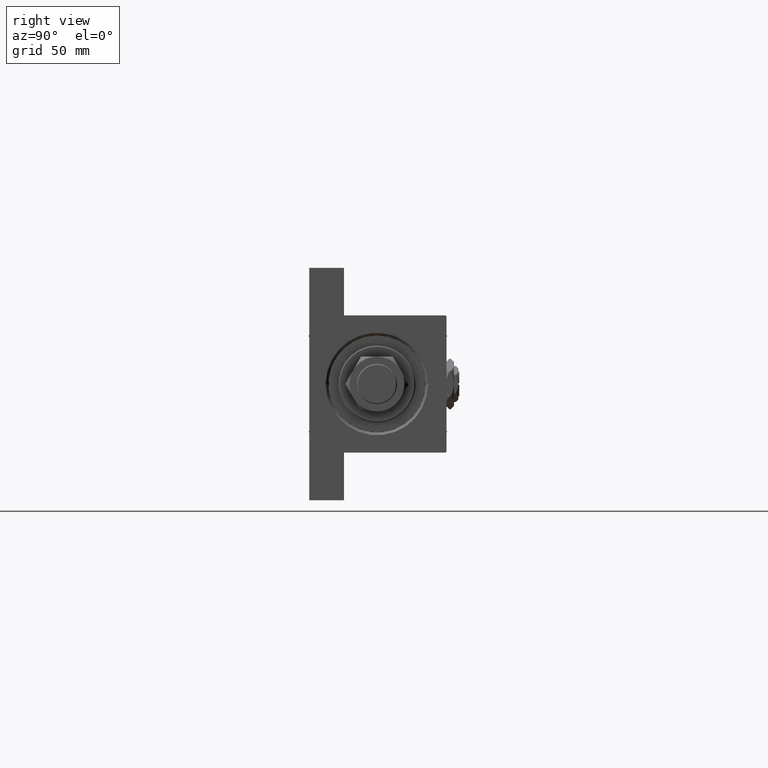
[diagram: clean part render]
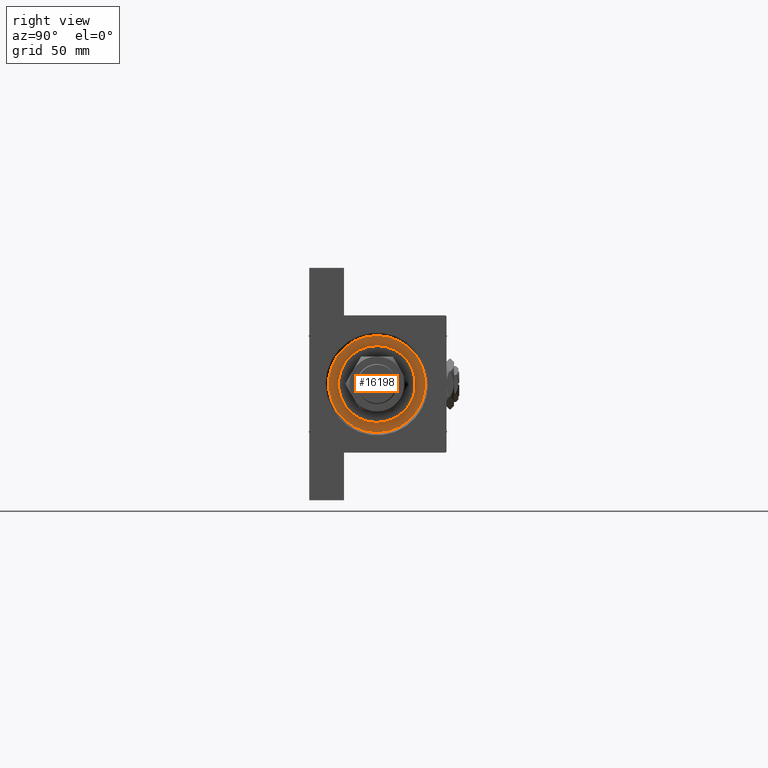
[diagram: same view with one face highlighted and labeled with its STEP entity id]
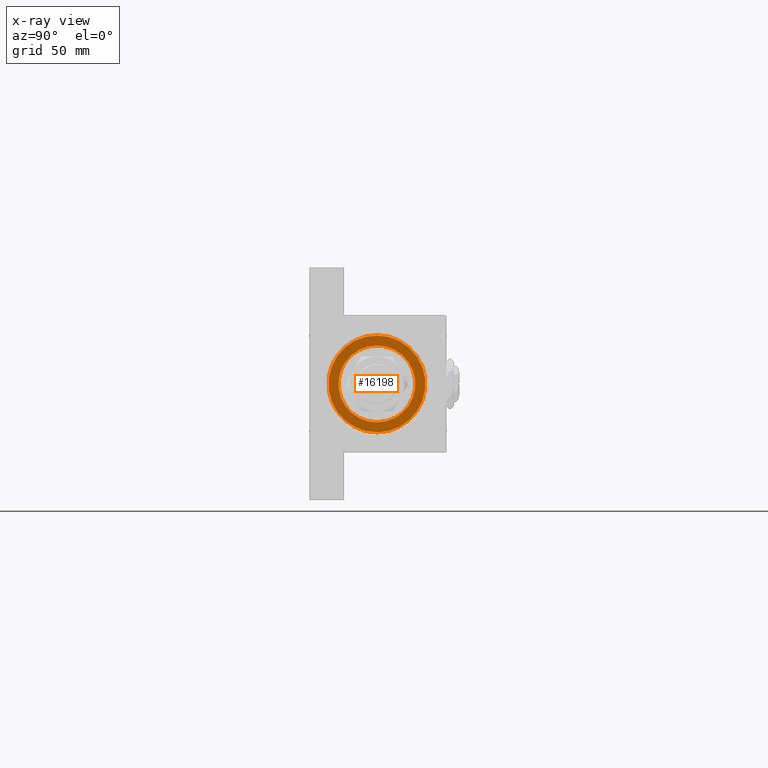
[diagram: x-ray of the same camera — body ghosted, the highlighted face saturated]
A machine part, right view. The second image highlights one B-rep face of the part: STEP entity #16198.
The next image is the same camera in x-ray: the body ghosted, the highlighted face saturated — about 0% of this face is hidden behind the body in this view.
In plain terms, the highlighted planar face has unit normal (1, 0, 0).
Its self-contained STEP definition (entity closure, byte-faithful):
#1001 = FACE_BOUND ( 'NONE', #40095, .T. ) ;
#1314 = DIRECTION ( 'NONE',  ( 1.000000000000000000, 0.000000000000000000, 0.000000000000000000 ) ) ;
#3361 = EDGE_CURVE ( 'NONE', #39452, #6964, #30539, .T. ) ;
#4596 = DIRECTION ( 'NONE',  ( 1.000000000000000000, 0.000000000000000000, -0.000000000000000000 ) ) ;
#5970 = DIRECTION ( 'NONE',  ( 1.000000000000000000, 0.000000000000000000, 0.000000000000000000 ) ) ;
#6002 = VERTEX_POINT ( 'NONE', #43432 ) ;
#6872 = DIRECTION ( 'NONE',  ( 1.000000000000000000, 0.000000000000000000, 0.000000000000000000 ) ) ;
#6964 = VERTEX_POINT ( 'NONE', #38831 ) ;
#8445 = AXIS2_PLACEMENT_3D ( 'NONE', #27324, #42980, #31417 ) ;
#8449 = CARTESIAN_POINT ( 'NONE',  ( -21.00000000000000000, 0.000000000000000000, 28.69999999999999929 ) ) ;
#8738 = CARTESIAN_POINT ( 'NONE',  ( 0.000000000000000000, 0.000000000000000000, 28.69999999999999929 ) ) ;
#12792 = FACE_OUTER_BOUND ( 'NONE', #21462, .T. ) ;
#15854 = PLANE ( 'NONE',  #38313 ) ;
#16198 = ADVANCED_FACE ( 'NONE', ( #1001, #12792 ), #15854, .T. ) ;
#17346 = CIRCLE ( 'NONE', #41920, 26.50000000000000355 ) ;
#17414 = CIRCLE ( 'NONE', #37889, 26.50000000000000355 ) ;
#19703 = CARTESIAN_POINT ( 'NONE',  ( 0.000000000000000000, 0.000000000000000000, 28.69999999999999929 ) ) ;
#20712 = DIRECTION ( 'NONE',  ( 0.000000000000000000, 0.000000000000000000, 1.000000000000000000 ) ) ;
#21462 = EDGE_LOOP ( 'NONE', ( #23256, #42191 ) ) ;
#23256 = ORIENTED_EDGE ( 'NONE', *, *, #33824, .T. ) ;
#25051 = CARTESIAN_POINT ( 'NONE',  ( 26.50000000000000355, 3.245314017740486554E-15, 28.69999999999999929 ) ) ;
#27324 = CARTESIAN_POINT ( 'NONE',  ( 0.000000000000000000, 0.000000000000000000, 28.69999999999999929 ) ) ;
#28405 = ORIENTED_EDGE ( 'NONE', *, *, #3361, .F. ) ;
#29402 = CARTESIAN_POINT ( 'NONE',  ( 0.000000000000000000, 0.000000000000000000, 28.69999999999999929 ) ) ;
#29739 = ORIENTED_EDGE ( 'NONE', *, *, #49297, .F. ) ;
#30539 = CIRCLE ( 'NONE', #8445, 21.00000000000000000 ) ;
#31417 = DIRECTION ( 'NONE',  ( 1.000000000000000000, 0.000000000000000000, 0.000000000000000000 ) ) ;
#33824 = EDGE_CURVE ( 'NONE', #6002, #48487, #17346, .T. ) ;
#35789 = EDGE_CURVE ( 'NONE', #48487, #6002, #17414, .T. ) ;
#36400 = DIRECTION ( 'NONE',  ( 0.000000000000000000, 0.000000000000000000, 1.000000000000000000 ) ) ;
#37889 = AXIS2_PLACEMENT_3D ( 'NONE', #8738, #36400, #1314 ) ;
#38313 = AXIS2_PLACEMENT_3D ( 'NONE', #19703, #20712, #4596 ) ;
#38831 = CARTESIAN_POINT ( 'NONE',  ( 21.00000000000000000, 2.571758278209441661E-15, 28.69999999999999929 ) ) ;
#39452 = VERTEX_POINT ( 'NONE', #8449 ) ;
#39883 = AXIS2_PLACEMENT_3D ( 'NONE', #29402, #45063, #6872 ) ;
#40095 = EDGE_LOOP ( 'NONE', ( #28405, #29739 ) ) ;
#41075 = DIRECTION ( 'NONE',  ( 0.000000000000000000, 0.000000000000000000, 1.000000000000000000 ) ) ;
#41920 = AXIS2_PLACEMENT_3D ( 'NONE', #48788, #41075, #5970 ) ;
#42191 = ORIENTED_EDGE ( 'NONE', *, *, #35789, .T. ) ;
#42980 = DIRECTION ( 'NONE',  ( 0.000000000000000000, 0.000000000000000000, 1.000000000000000000 ) ) ;
#43432 = CARTESIAN_POINT ( 'NONE',  ( -26.50000000000000355, 0.000000000000000000, 28.69999999999999929 ) ) ;
#45063 = DIRECTION ( 'NONE',  ( 0.000000000000000000, 0.000000000000000000, 1.000000000000000000 ) ) ;
#48487 = VERTEX_POINT ( 'NONE', #25051 ) ;
#48788 = CARTESIAN_POINT ( 'NONE',  ( 0.000000000000000000, 0.000000000000000000, 28.69999999999999929 ) ) ;
#49297 = EDGE_CURVE ( 'NONE', #6964, #39452, #49758, .T. ) ;
#49758 = CIRCLE ( 'NONE', #39883, 21.00000000000000000 ) ;